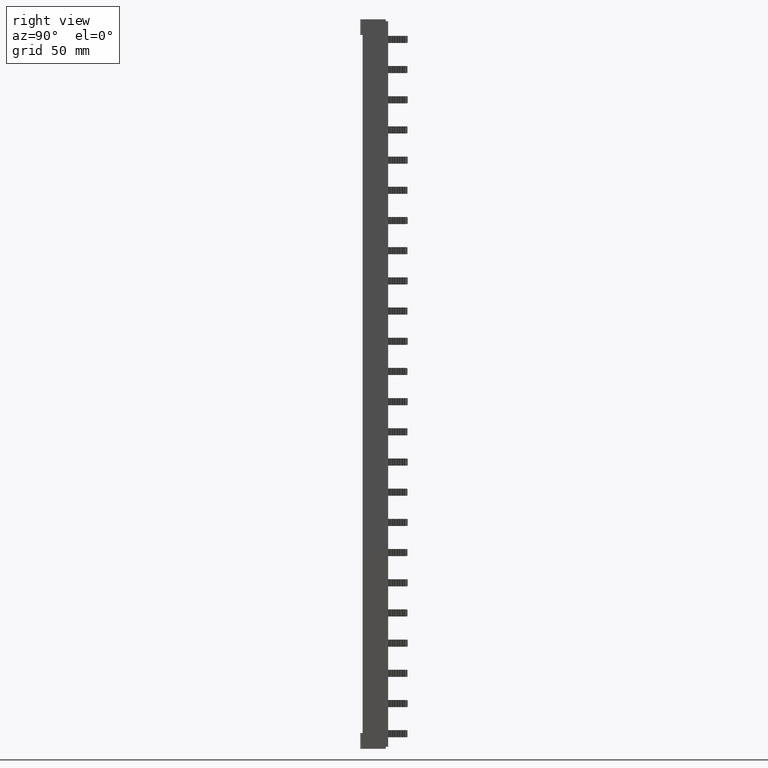
[diagram: clean part render]
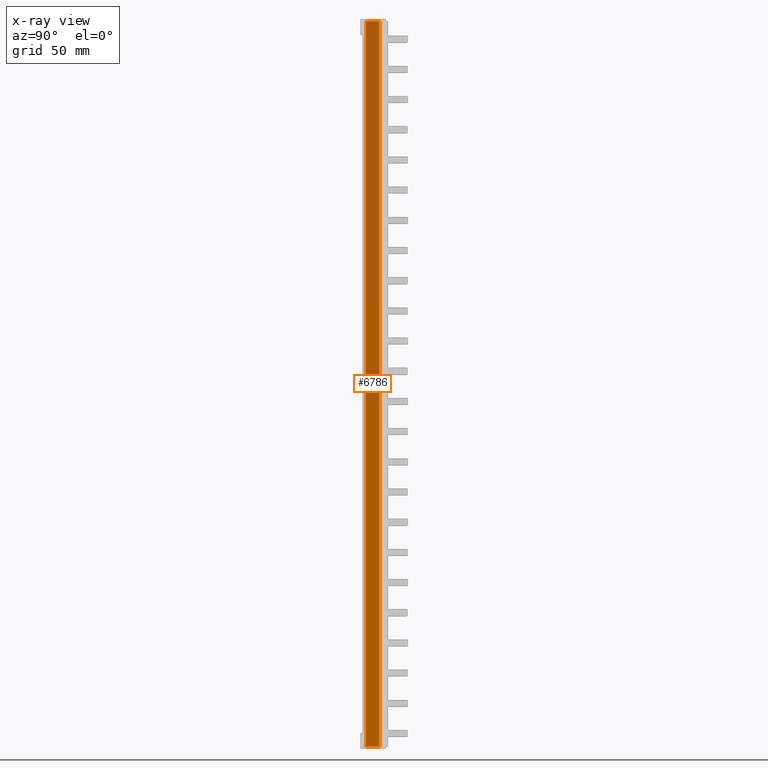
[diagram: x-ray — body ghosted, one internal face saturated and labeled with its STEP entity id]
A machine part, right view, then the same camera in x-ray: the body is ghosted and one INTERNAL B-rep face — a face not visible from any outside direction — is saturated and labeled: STEP entity #6786.
In plain terms, the highlighted planar face has unit normal (1, -0, 0).
Its self-contained STEP definition (entity closure, byte-faithful):
#5450 = ORIENTED_EDGE ( 'NONE', *, *, #37645, .F. ) ;
#5469 = ORIENTED_EDGE ( 'NONE', *, *, #37617, .T. ) ;
#5508 = ORIENTED_EDGE ( 'NONE', *, *, #37604, .T. ) ;
#5511 = ORIENTED_EDGE ( 'NONE', *, *, #37662, .F. ) ;
#6708 = VECTOR ( 'NONE', #30433, 1000.000000000000000 ) ;
#6786 = ADVANCED_FACE ( 'NONE', ( #39353 ), #39344, .T. ) ;
#7330 = VECTOR ( 'NONE', #30496, 1000.000000000000000 ) ;
#8055 = VECTOR ( 'NONE', #30388, 1000.000000000000000 ) ;
#8066 = VECTOR ( 'NONE', #30381, 1000.000000000000000 ) ;
#11741 = AXIS2_PLACEMENT_3D ( 'NONE', #39354, #39355, #39361 ) ;
#15993 = VERTEX_POINT ( 'NONE', #19270 ) ;
#16020 = VERTEX_POINT ( 'NONE', #19274 ) ;
#16033 = VERTEX_POINT ( 'NONE', #19259 ) ;
#16046 = VERTEX_POINT ( 'NONE', #19289 ) ;
#19259 = CARTESIAN_POINT ( 'NONE',  ( 4.000000000000003600, 1.799999999999940500, 217.7999999999976200 ) ) ;
#19270 = CARTESIAN_POINT ( 'NONE',  ( 4.000000000000003600, 9.799999999999947400, -208.8000000000019400 ) ) ;
#19274 = CARTESIAN_POINT ( 'NONE',  ( 4.000000000000003600, 1.799999999999940500, -208.8000000000025100 ) ) ;
#19289 = CARTESIAN_POINT ( 'NONE',  ( 4.000000000000003600, 9.799999999999947400, 217.7999999999974200 ) ) ;
#30378 = CARTESIAN_POINT ( 'NONE',  ( 4.000000000000003600, 0.4000000000001606700, 217.7999999999972300 ) ) ;
#30381 = DIRECTION ( 'NONE',  ( -0.0000000000000000000, -1.000000000000000000, -0.0000000000000000000 ) ) ;
#30388 = DIRECTION ( 'NONE',  ( 0.0000000000000000000, 1.000000000000000000, 0.0000000000000000000 ) ) ;
#30391 = CARTESIAN_POINT ( 'NONE',  ( 4.000000000000003600, 0.4000000000001606700, -208.8000000000028300 ) ) ;
#30400 = LINE ( 'NONE', #30391, #8055 ) ;
#30410 = LINE ( 'NONE', #30378, #8066 ) ;
#30433 = DIRECTION ( 'NONE',  ( 0.0000000000000000000, -0.0000000000000000000, -1.000000000000000000 ) ) ;
#30457 = LINE ( 'NONE', #30458, #6708 ) ;
#30458 = CARTESIAN_POINT ( 'NONE',  ( 4.000000000000003600, 9.799999999999947400, 219.0000000000000000 ) ) ;
#30488 = LINE ( 'NONE', #30492, #7330 ) ;
#30492 = CARTESIAN_POINT ( 'NONE',  ( 4.000000000000003600, 1.799999999999940500, 219.0000000000000000 ) ) ;
#30496 = DIRECTION ( 'NONE',  ( 0.0000000000000000000, -0.0000000000000000000, 1.000000000000000000 ) ) ;
#33724 = EDGE_LOOP ( 'NONE', ( #5469, #5511, #5508, #5450 ) ) ;
#37604 = EDGE_CURVE ( 'NONE', #16020, #15993, #30400, .T. ) ;
#37617 = EDGE_CURVE ( 'NONE', #16046, #16033, #30410, .T. ) ;
#37645 = EDGE_CURVE ( 'NONE', #16046, #15993, #30457, .T. ) ;
#37662 = EDGE_CURVE ( 'NONE', #16020, #16033, #30488, .T. ) ;
#39344 = PLANE ( 'NONE',  #11741 ) ;
#39353 = FACE_OUTER_BOUND ( 'NONE', #33724, .T. ) ;
#39354 = CARTESIAN_POINT ( 'NONE',  ( 4.000000000000003600, 9.799999999999947400, 219.0000000000000000 ) ) ;
#39355 = DIRECTION ( 'NONE',  ( 1.000000000000000000, -0.0000000000000000000, 0.0000000000000000000 ) ) ;
#39361 = DIRECTION ( 'NONE',  ( 0.0000000000000000000, 0.0000000000000000000, -1.000000000000000000 ) ) ;